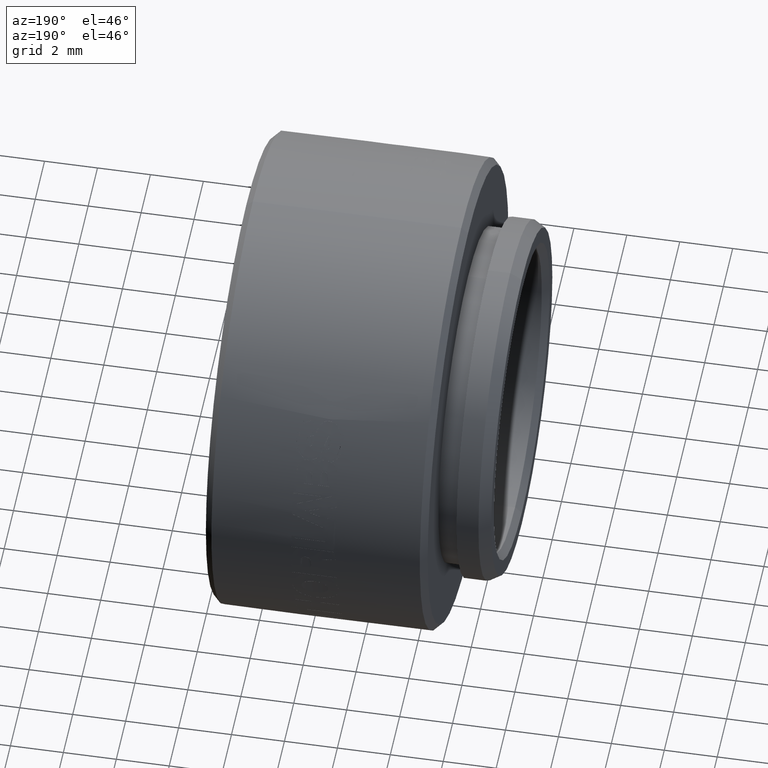
[diagram: clean part render]
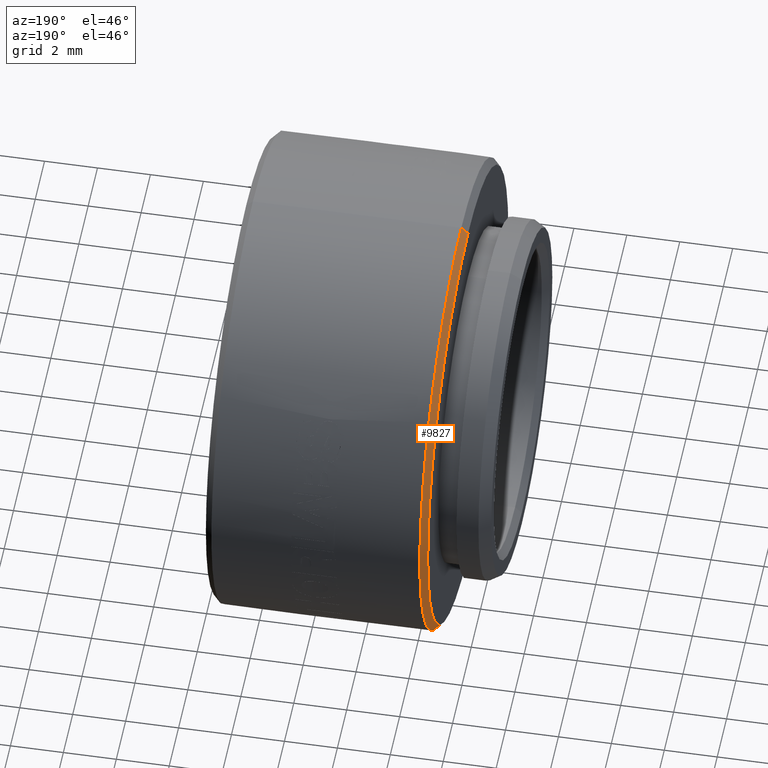
[diagram: same view with one face highlighted and labeled with its STEP entity id]
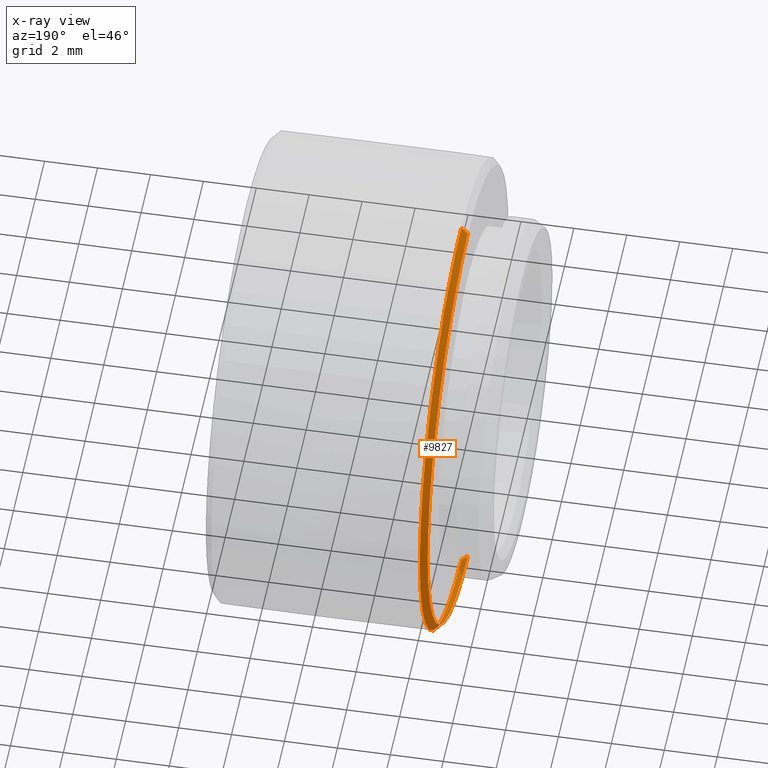
[diagram: x-ray of the same camera — body ghosted, the highlighted face saturated]
A machine part, auxiliary view. The second image highlights one B-rep face of the part: STEP entity #9827.
The next image is the same camera in x-ray: the body ghosted, the highlighted face saturated — about 2% of this face is hidden behind the body in this view.
In plain terms, the highlighted conical surface has half-angle 45 deg.
Its self-contained STEP definition (entity closure, byte-faithful):
#1233 = VERTEX_POINT ( 'NONE', #13701 ) ;
#1552 = AXIS2_PLACEMENT_3D ( 'NONE', #14554, #6278, #15976 ) ;
#2153 = ORIENTED_EDGE ( 'NONE', *, *, #7082, .F. ) ;
#2662 = CARTESIAN_POINT ( 'NONE',  ( -0.1149999999999998400, 4.286263797015736000E-017, 0.3499999999999999800 ) ) ;
#3011 = CIRCLE ( 'NONE', #1552, 0.3399999999999995200 ) ;
#3043 = ORIENTED_EDGE ( 'NONE', *, *, #8596, .F. ) ;
#3266 = VERTEX_POINT ( 'NONE', #14119 ) ;
#4662 = DIRECTION ( 'NONE',  ( 1.000000000000000000, -0.0000000000000000000, -0.0000000000000000000 ) ) ;
#4863 = ORIENTED_EDGE ( 'NONE', *, *, #5127, .F. ) ;
#5127 = EDGE_CURVE ( 'NONE', #1233, #9180, #10262, .T. ) ;
#5374 = FACE_OUTER_BOUND ( 'NONE', #8083, .T. ) ;
#5498 = AXIS2_PLACEMENT_3D ( 'NONE', #10274, #11649, #6089 ) ;
#5933 = EDGE_CURVE ( 'NONE', #3266, #9180, #17376, .T. ) ;
#6089 = DIRECTION ( 'NONE',  ( 0.0000000000000000000, 0.0000000000000000000, -1.000000000000000000 ) ) ;
#6252 = ORIENTED_EDGE ( 'NONE', *, *, #5933, .T. ) ;
#6278 = DIRECTION ( 'NONE',  ( -1.000000000000000000, 0.0000000000000000000, 0.0000000000000000000 ) ) ;
#6344 = VECTOR ( 'NONE', #15111, 39.37007874015748100 ) ;
#6504 = CARTESIAN_POINT ( 'NONE',  ( -0.1149999999999998400, 4.286263797015736000E-017, 0.3499999999999999800 ) ) ;
#7082 = EDGE_CURVE ( 'NONE', #16050, #1233, #12815, .T. ) ;
#7404 = CARTESIAN_POINT ( 'NONE',  ( -0.1250000000000001900, 0.0000000000000000000, -0.3399999999999995200 ) ) ;
#8083 = EDGE_LOOP ( 'NONE', ( #3043, #6252, #4863, #2153 ) ) ;
#8587 = CONICAL_SURFACE ( 'NONE', #5498, 0.3499999999999999800, 0.7853981633974517200 ) ;
#8596 = EDGE_CURVE ( 'NONE', #3266, #16050, #3011, .T. ) ;
#9180 = VERTEX_POINT ( 'NONE', #6504 ) ;
#9827 = ADVANCED_FACE ( 'NONE', ( #5374 ), #8587, .T. ) ;
#10262 = CIRCLE ( 'NONE', #10784, 0.3499999999999999800 ) ;
#10274 = CARTESIAN_POINT ( 'NONE',  ( -0.1149999999999998400, 0.0000000000000000000, 0.0000000000000000000 ) ) ;
#10784 = AXIS2_PLACEMENT_3D ( 'NONE', #12949, #4662, #14323 ) ;
#11036 = CARTESIAN_POINT ( 'NONE',  ( -0.1149999999999998400, 0.0000000000000000000, -0.3499999999999999800 ) ) ;
#11649 = DIRECTION ( 'NONE',  ( 1.000000000000000000, -0.0000000000000000000, -0.0000000000000000000 ) ) ;
#12815 = LINE ( 'NONE', #11036, #13261 ) ;
#12949 = CARTESIAN_POINT ( 'NONE',  ( -0.1149999999999998400, 0.0000000000000000000, 0.0000000000000000000 ) ) ;
#13261 = VECTOR ( 'NONE', #16573, 39.37007874015748100 ) ;
#13701 = CARTESIAN_POINT ( 'NONE',  ( -0.1149999999999998400, 0.0000000000000000000, -0.3499999999999999800 ) ) ;
#14119 = CARTESIAN_POINT ( 'NONE',  ( -0.1250000000000001900, 4.225031457058365400E-017, 0.3399999999999995200 ) ) ;
#14323 = DIRECTION ( 'NONE',  ( 0.0000000000000000000, 0.0000000000000000000, 1.000000000000000000 ) ) ;
#14554 = CARTESIAN_POINT ( 'NONE',  ( -0.1250000000000001900, 0.0000000000000000000, 0.0000000000000000000 ) ) ;
#15111 = DIRECTION ( 'NONE',  ( 0.7071067811865451300, 8.659560562354962400E-017, 0.7071067811865499000 ) ) ;
#15976 = DIRECTION ( 'NONE',  ( 0.0000000000000000000, 0.0000000000000000000, 1.000000000000000000 ) ) ;
#16050 = VERTEX_POINT ( 'NONE', #7404 ) ;
#16573 = DIRECTION ( 'NONE',  ( 0.7071067811865451300, 0.0000000000000000000, -0.7071067811865499000 ) ) ;
#17376 = LINE ( 'NONE', #2662, #6344 ) ;